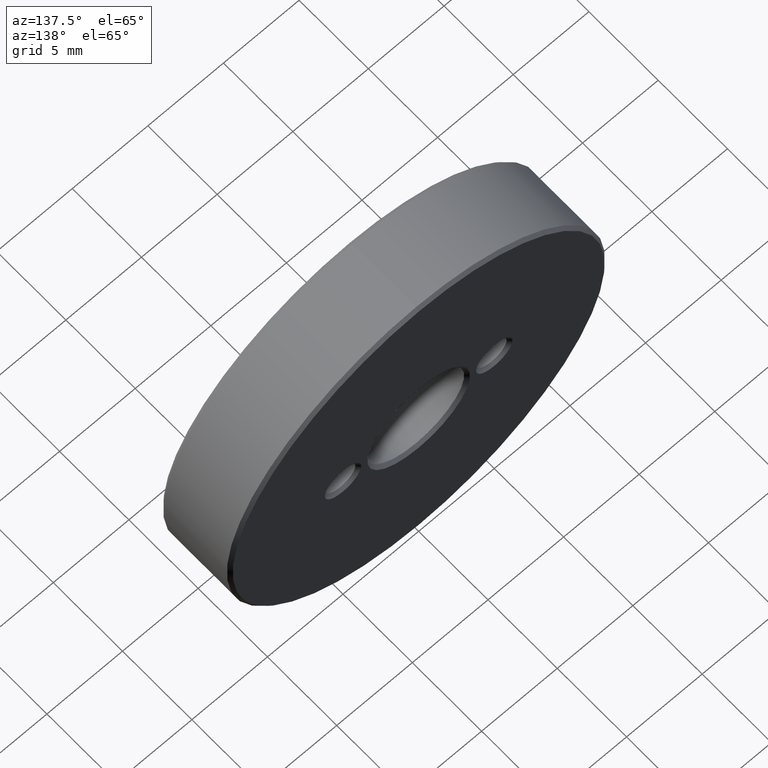
[diagram: clean part render]
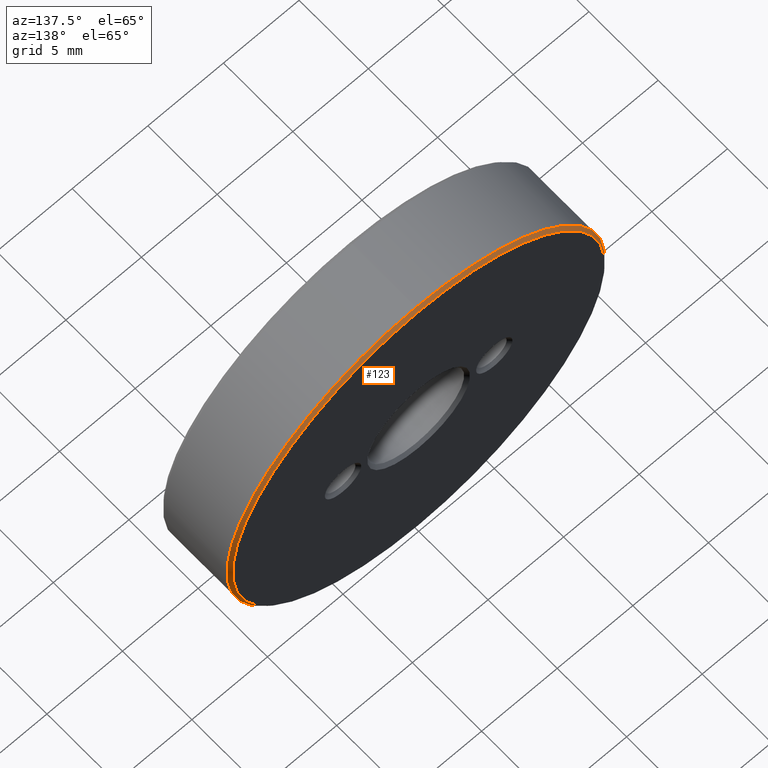
[diagram: same view with one face highlighted and labeled with its STEP entity id]
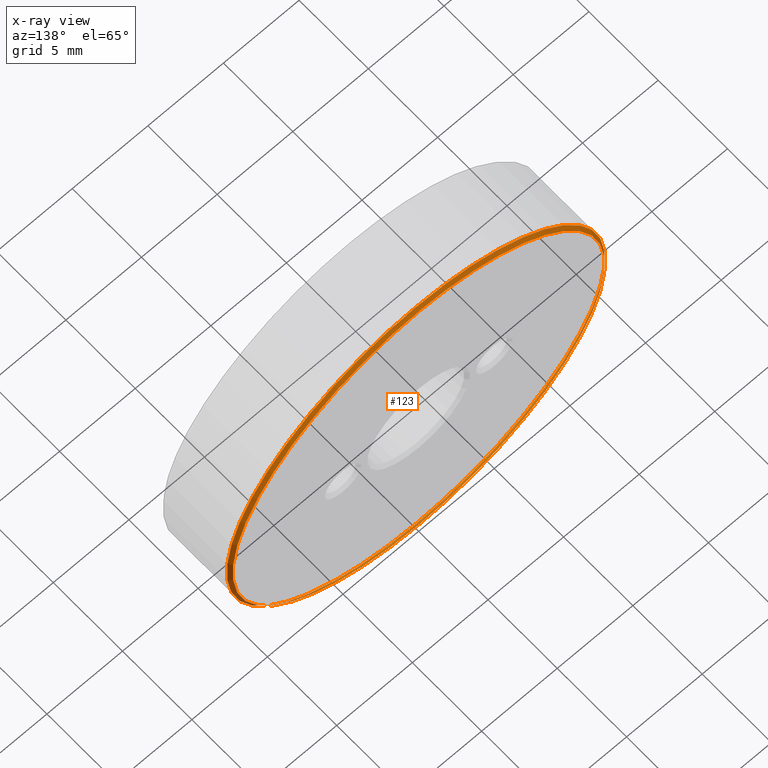
[diagram: x-ray of the same camera — body ghosted, the highlighted face saturated]
A machine part, auxiliary view. The second image highlights one B-rep face of the part: STEP entity #123.
The next image is the same camera in x-ray: the body ghosted, the highlighted face saturated — about 0% of this face is hidden behind the body in this view.
In plain terms, the highlighted conical surface has half-angle 45 deg.
Its self-contained STEP definition (entity closure, byte-faithful):
#13 = DIRECTION ( 'NONE',  ( 0.000000000000000000, 0.000000000000000000, 1.000000000000000000 ) ) ;
#35 = CIRCLE ( 'NONE', #222, 12.30000000000000249 ) ;
#59 = CARTESIAN_POINT ( 'NONE',  ( 0.000000000000000000, 5.000000000000000000, 12.30000000000000249 ) ) ;
#88 = CONICAL_SURFACE ( 'NONE', #136, 12.30000000000000249, 0.7853981633974526089 ) ;
#123 = ADVANCED_FACE ( 'NONE', ( #334, #364 ), #88, .T. ) ;
#125 = CIRCLE ( 'NONE', #215, 12.50000000000000000 ) ;
#136 = AXIS2_PLACEMENT_3D ( 'NONE', #306, #153, #187 ) ;
#147 = DIRECTION ( 'NONE',  ( 0.000000000000000000, 1.000000000000000000, 0.000000000000000000 ) ) ;
#153 = DIRECTION ( 'NONE',  ( 0.000000000000000000, -1.000000000000000000, 0.000000000000000000 ) ) ;
#164 = VERTEX_POINT ( 'NONE', #366 ) ;
#165 = ORIENTED_EDGE ( 'NONE', *, *, #256, .F. ) ;
#171 = CARTESIAN_POINT ( 'NONE',  ( 0.000000000000000000, 4.800000000000003375, 0.000000000000000000 ) ) ;
#173 = DIRECTION ( 'NONE',  ( 0.000000000000000000, 0.000000000000000000, 1.000000000000000000 ) ) ;
#187 = DIRECTION ( 'NONE',  ( 0.000000000000000000, 0.000000000000000000, -1.000000000000000000 ) ) ;
#205 = DIRECTION ( 'NONE',  ( 0.000000000000000000, -1.000000000000000000, 0.000000000000000000 ) ) ;
#209 = VERTEX_POINT ( 'NONE', #59 ) ;
#215 = AXIS2_PLACEMENT_3D ( 'NONE', #171, #205, #173 ) ;
#222 = AXIS2_PLACEMENT_3D ( 'NONE', #382, #147, #13 ) ;
#234 = EDGE_LOOP ( 'NONE', ( #165 ) ) ;
#256 = EDGE_CURVE ( 'NONE', #164, #164, #125, .T. ) ;
#306 = CARTESIAN_POINT ( 'NONE',  ( 0.000000000000000000, 5.000000000000000000, 0.000000000000000000 ) ) ;
#334 = FACE_OUTER_BOUND ( 'NONE', #234, .T. ) ;
#342 = ORIENTED_EDGE ( 'NONE', *, *, #367, .F. ) ;
#364 = FACE_BOUND ( 'NONE', #375, .T. ) ;
#366 = CARTESIAN_POINT ( 'NONE',  ( 0.000000000000000000, 4.800000000000003375, 12.50000000000000000 ) ) ;
#367 = EDGE_CURVE ( 'NONE', #209, #209, #35, .T. ) ;
#375 = EDGE_LOOP ( 'NONE', ( #342 ) ) ;
#382 = CARTESIAN_POINT ( 'NONE',  ( 0.000000000000000000, 5.000000000000000000, 0.000000000000000000 ) ) ;